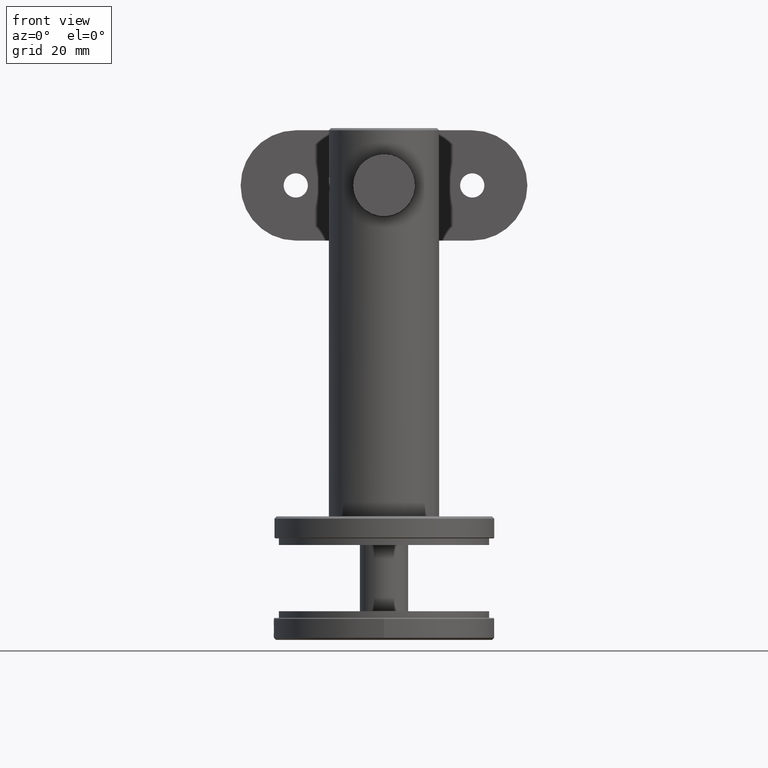
[diagram: clean part render]
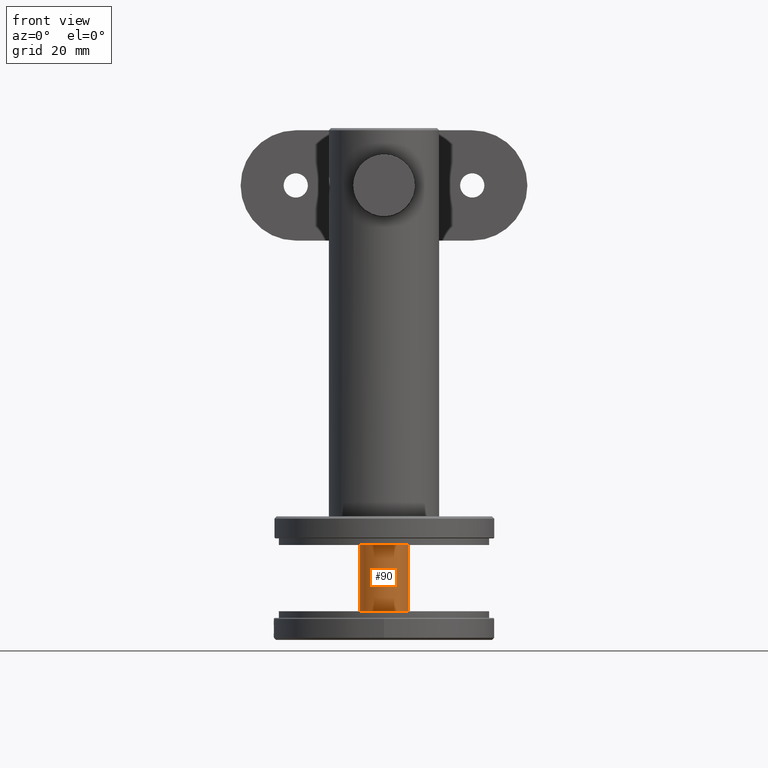
[diagram: same view with one face highlighted and labeled with its STEP entity id]
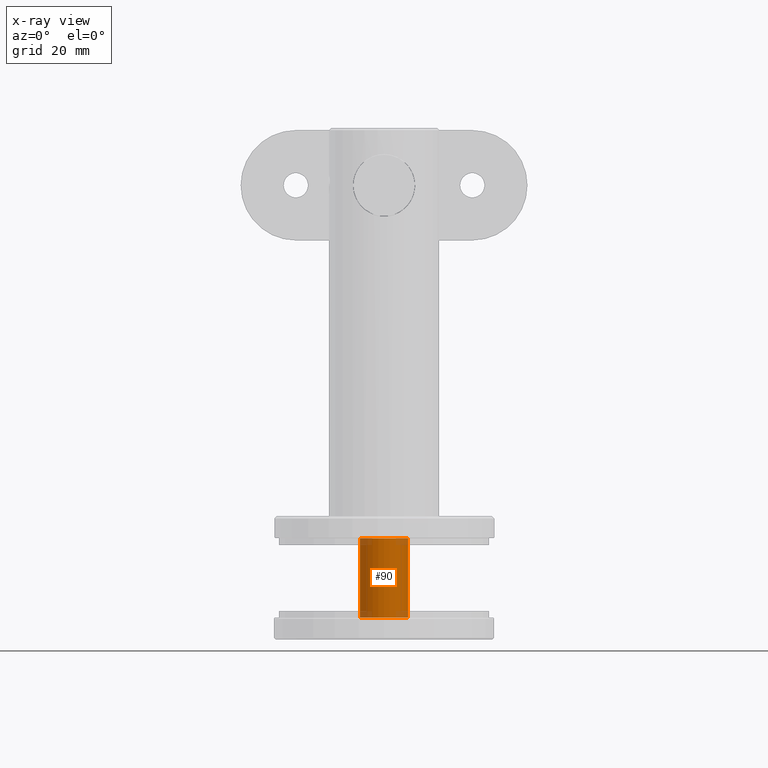
[diagram: x-ray of the same camera — body ghosted, the highlighted face saturated]
A machine part, front view. The second image highlights one B-rep face of the part: STEP entity #90.
The next image is the same camera in x-ray: the body ghosted, the highlighted face saturated — about 8% of this face is hidden behind the body in this view.
In plain terms, the highlighted cylindrical surface (bore or boss wall) has radius 5.5 mm, axis along (-0, -0, 1).
Its self-contained STEP definition (entity closure, byte-faithful):
#90 = ADVANCED_FACE ( 'NONE', ( #19343, #10707 ), #10205, .T. ) ;
#1857 = CARTESIAN_POINT ( 'NONE',  ( 0.0000000000000000000, 0.0000000000000000000, 0.0000000000000000000 ) ) ;
#1874 = DIRECTION ( 'NONE',  ( 0.0000000000000000000, 0.0000000000000000000, 1.000000000000000000 ) ) ;
#2016 = DIRECTION ( 'NONE',  ( 0.0000000000000000000, 1.000000000000000000, 0.0000000000000000000 ) ) ;
#2538 = AXIS2_PLACEMENT_3D ( 'NONE', #11919, #13558, #16755 ) ;
#3276 = DIRECTION ( 'NONE',  ( 0.0000000000000000000, 0.0000000000000000000, 1.000000000000000000 ) ) ;
#4328 = AXIS2_PLACEMENT_3D ( 'NONE', #10132, #2016, #1874 ) ;
#4572 = EDGE_LOOP ( 'NONE', ( #14208 ) ) ;
#4927 = EDGE_CURVE ( 'NONE', #9043, #9043, #13940, .T. ) ;
#6041 = CARTESIAN_POINT ( 'NONE',  ( 0.0000000000000000000, 18.00000000000000000, 5.500000000000000000 ) ) ;
#8212 = AXIS2_PLACEMENT_3D ( 'NONE', #1857, #11679, #3276 ) ;
#9043 = VERTEX_POINT ( 'NONE', #6041 ) ;
#9204 = CIRCLE ( 'NONE', #8212, 5.500000000000000000 ) ;
#10132 = CARTESIAN_POINT ( 'NONE',  ( 0.0000000000000000000, 18.00000000000000000, 0.0000000000000000000 ) ) ;
#10205 = CYLINDRICAL_SURFACE ( 'NONE', #2538, 5.500000000000000000 ) ;
#10707 = FACE_OUTER_BOUND ( 'NONE', #20863, .T. ) ;
#11679 = DIRECTION ( 'NONE',  ( 0.0000000000000000000, 1.000000000000000000, 0.0000000000000000000 ) ) ;
#11919 = CARTESIAN_POINT ( 'NONE',  ( 0.0000000000000000000, 18.00000000000000000, 0.0000000000000000000 ) ) ;
#12311 = ORIENTED_EDGE ( 'NONE', *, *, #14584, .T. ) ;
#12365 = VERTEX_POINT ( 'NONE', #12683 ) ;
#12683 = CARTESIAN_POINT ( 'NONE',  ( 0.0000000000000000000, 0.0000000000000000000, 5.500000000000000000 ) ) ;
#13558 = DIRECTION ( 'NONE',  ( -0.0000000000000000000, -1.000000000000000000, -0.0000000000000000000 ) ) ;
#13940 = CIRCLE ( 'NONE', #4328, 5.500000000000000000 ) ;
#14208 = ORIENTED_EDGE ( 'NONE', *, *, #4927, .F. ) ;
#14584 = EDGE_CURVE ( 'NONE', #12365, #12365, #9204, .T. ) ;
#16755 = DIRECTION ( 'NONE',  ( 0.0000000000000000000, 0.0000000000000000000, -1.000000000000000000 ) ) ;
#19343 = FACE_OUTER_BOUND ( 'NONE', #4572, .T. ) ;
#20863 = EDGE_LOOP ( 'NONE', ( #12311 ) ) ;